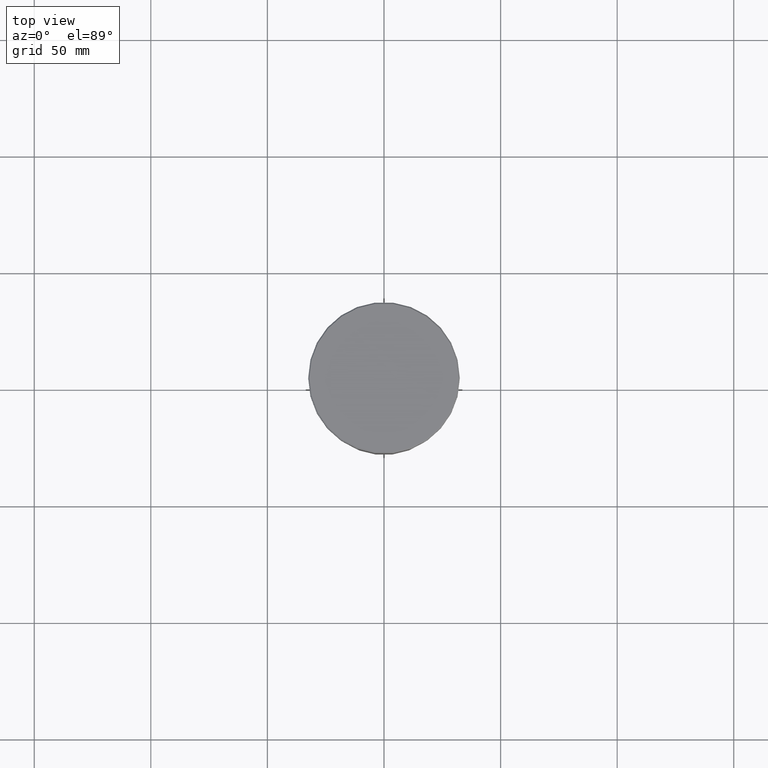
[diagram: clean part render]
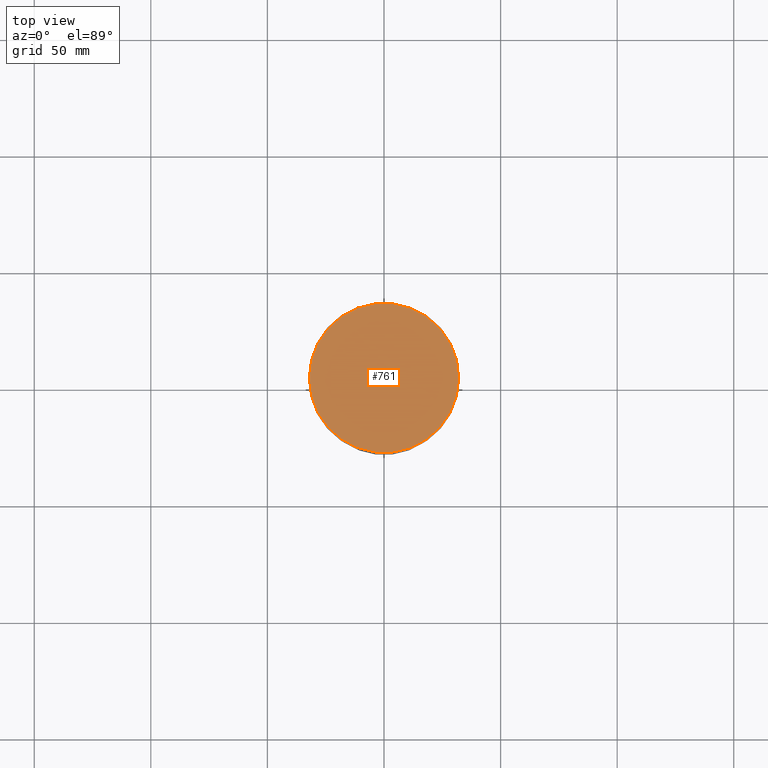
[diagram: same view with one face highlighted and labeled with its STEP entity id]
A machine part, top view. The second image highlights one B-rep face of the part: STEP entity #761.
In plain terms, the highlighted planar face has unit normal (0, -0, 1).
Its self-contained STEP definition (entity closure, byte-faithful):
#37 = CIRCLE ( 'NONE', #1022, 32.00000000000002842 ) ;
#72 = CARTESIAN_POINT ( 'NONE',  ( -32.00000000000002842, 0.000000000000000000, 0.000000000000000000 ) ) ;
#152 = CARTESIAN_POINT ( 'NONE',  ( 0.000000000000000000, 0.000000000000000000, 0.000000000000000000 ) ) ;
#161 = DIRECTION ( 'NONE',  ( -0.000000000000000000, -0.000000000000000000, 1.000000000000000000 ) ) ;
#203 = DIRECTION ( 'NONE',  ( -0.000000000000000000, -0.000000000000000000, 1.000000000000000000 ) ) ;
#385 = DIRECTION ( 'NONE',  ( 1.000000000000000000, 0.000000000000000000, 0.000000000000000000 ) ) ;
#407 = CIRCLE ( 'NONE', #1097, 32.00000000000002842 ) ;
#428 = PLANE ( 'NONE',  #707 ) ;
#467 = VERTEX_POINT ( 'NONE', #735 ) ;
#555 = DIRECTION ( 'NONE',  ( 1.000000000000000000, 0.000000000000000000, 0.000000000000000000 ) ) ;
#583 = EDGE_CURVE ( 'NONE', #808, #467, #407, .T. ) ;
#707 = AXIS2_PLACEMENT_3D ( 'NONE', #152, #976, #710 ) ;
#710 = DIRECTION ( 'NONE',  ( 1.000000000000000000, 0.000000000000000000, 0.000000000000000000 ) ) ;
#735 = CARTESIAN_POINT ( 'NONE',  ( 32.00000000000002842, 3.949485927250216417E-15, 0.000000000000000000 ) ) ;
#761 = ADVANCED_FACE ( 'NONE', ( #897 ), #428, .T. ) ;
#808 = VERTEX_POINT ( 'NONE', #72 ) ;
#897 = FACE_OUTER_BOUND ( 'NONE', #994, .T. ) ;
#951 = ORIENTED_EDGE ( 'NONE', *, *, #583, .T. ) ;
#963 = EDGE_CURVE ( 'NONE', #467, #808, #37, .T. ) ;
#969 = ORIENTED_EDGE ( 'NONE', *, *, #963, .T. ) ;
#976 = DIRECTION ( 'NONE',  ( 0.000000000000000000, -0.000000000000000000, 1.000000000000000000 ) ) ;
#992 = CARTESIAN_POINT ( 'NONE',  ( 0.000000000000000000, 0.000000000000000000, 0.000000000000000000 ) ) ;
#994 = EDGE_LOOP ( 'NONE', ( #951, #969 ) ) ;
#1022 = AXIS2_PLACEMENT_3D ( 'NONE', #1091, #203, #385 ) ;
#1091 = CARTESIAN_POINT ( 'NONE',  ( 0.000000000000000000, 0.000000000000000000, 0.000000000000000000 ) ) ;
#1097 = AXIS2_PLACEMENT_3D ( 'NONE', #992, #161, #555 ) ;